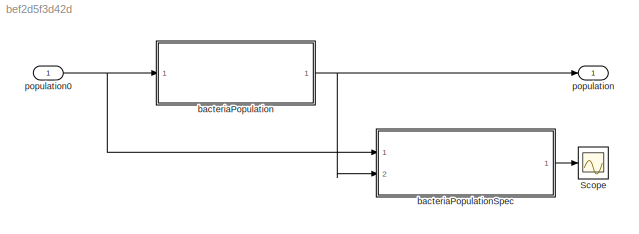
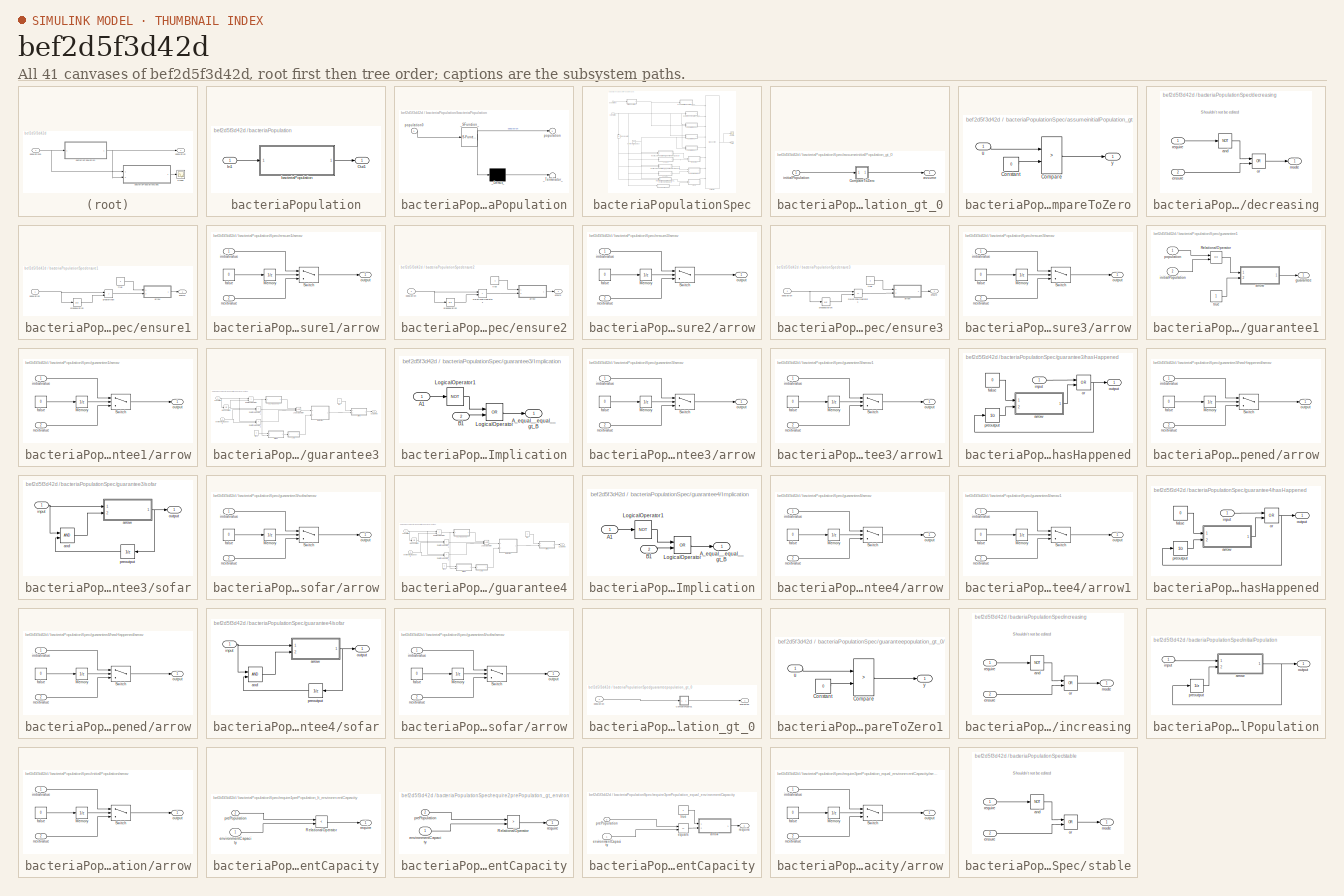
[diagram: thumbnail index - all 41 canvases of the model, root first then tree order]
MODEL slx_bef2d5f3d42d
KIND model
CONFIG AbsTol = auto
CONFIG EnableMultiTasking = off
CONFIG FixedStep = 1
CONFIG MaxStep = auto
CONFIG MinStep = auto
CONFIG RelTol = 1e-3
CONFIG SampleTimeConstraint = Unconstrained
CONFIG Solver = FixedStepDiscrete
CONFIG SolverName = FixedStepDiscrete
CONFIG StartTime = 0.0
CONFIG StopTime = 10.0
WORKSPACE source: MAT-file member
WORKSPACE MCOS: class17 (value not decoded)
BLOCK [Scope] Scope
  NumInputPorts = 1
  Ports = [1]
  ScopeSpecificationString = C++SS(StrPVP('Open','off'),StrPVP('TimeRange','auto'),StrPVP('TickLabels','OneTimeTick'),StrPVP('ShowLegends','off'),StrPVP('LimitDataPoints','off'),StrPVP('MaxDataPoints','5000'),StrPVP('SaveToWorkspace','off'),StrPVP('SaveName','ScopeData1'),StrPVP('YMin','0.9'),StrPVP('YMax','1.1'),StrPVP('BlockParamSampleInput','off'),StrPVP('BlockParamSampleTime','-1'),StrPVP('ZoomMode','on'),StrPVP('Grid','o...<+623ch>
BLOCK [SubSystem] bacteriaPopulation
  Ports = [1, 1]
  RequestExecContextInheritance = off
  TreatAsAtomicUnit = on
  Variant = off
BLOCK [Inport] bacteriaPopulation/In1
  IconDisplay = Port number
BLOCK [Outport] bacteriaPopulation/Out1
  IconDisplay = Port number
BLOCK [SubSystem] bacteriaPopulation/bacteriaPopulation
  ErrorFcn = Stateflow.Translate.translate
  PermitHierarchicalResolution = ExplicitOnly
  Ports = [1, 1]
  RequestExecContextInheritance = off
  SFBlockType = Chart
  TreatAsAtomicUnit = on
  Variant = off
BLOCK [Demux] bacteriaPopulation/bacteriaPopulation/_Demux_
  Outputs = 1
  Ports = [1, 1]
BLOCK [S-Function] bacteriaPopulation/bacteriaPopulation/_SFunction_
  EnableBusSupport = on
  FunctionName = sf_sfun
  PortCounts = [1 2]
  Ports = [1, 2]
  SFcnIsStateOwnerBlock = off
  SFunctionDeploymentMode = off
  Tag = Stateflow S-Function graphicalFun1 3
BLOCK [Terminator] bacteriaPopulation/bacteriaPopulation/_Terminator_
BLOCK [Outport] bacteriaPopulation/bacteriaPopulation/population
  IconDisplay = Port number
BLOCK [Inport] bacteriaPopulation/bacteriaPopulation/population0
  IconDisplay = Port number
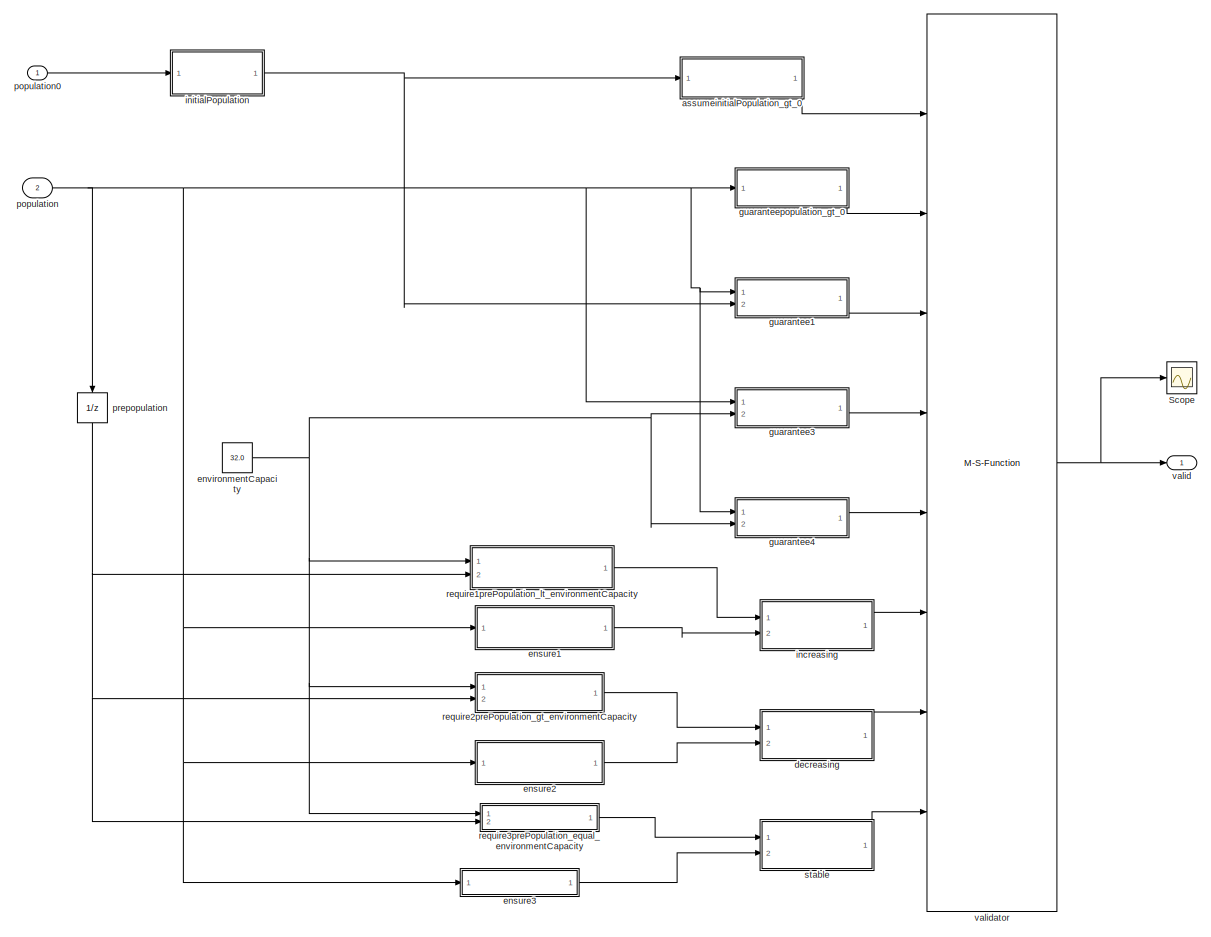
[diagram: bacteriaPopulationSpec - part 1/1, most of the canvas]
BLOCK [SubSystem] bacteriaPopulationSpec
  Ports = [2, 1]
  RequestExecContextInheritance = off
  TreatAsAtomicUnit = on
  Variant = off
BLOCK [Scope] bacteriaPopulationSpec/Scope
  NumInputPorts = 1
  Ports = [1]
  ScopeSpecificationString = C++SS(StrPVP('Open','off'),StrPVP('TimeRange','auto'),StrPVP('TickLabels','OneTimeTick'),StrPVP('ShowLegends','off'),StrPVP('LimitDataPoints','off'),StrPVP('MaxDataPoints','5000'),StrPVP('SaveToWorkspace','off'),StrPVP('SaveName','ScopeData1'),StrPVP('YMin','-10'),StrPVP('YMax','10'),StrPVP('BlockParamSampleInput','off'),StrPVP('BlockParamSampleTime','-1'),StrPVP('ZoomMode','on'),StrPVP('Grid','on...<+571ch>
BLOCK [SubSystem] bacteriaPopulationSpec/assumeinitialPopulation_gt_0
  Ports = [1, 1]
  RequestExecContextInheritance = off
  TreatAsAtomicUnit = on
  Variant = off
BLOCK [SubSystem] bacteriaPopulationSpec/assumeinitialPopulation_gt_0/CompareToZero
  AncestorBlock = simulink/Logic and Bit\nOperations/Compare\nTo Zero
  Ports = [1, 1]
  RequestExecContextInheritance = off
  TreatAsAtomicUnit = on
  Variant = off
BLOCK [RelationalOperator] bacteriaPopulationSpec/assumeinitialPopulation_gt_0/CompareToZero/Compare
  Operator = >
  OutDataTypeStr = boolean
  Ports = [2, 1]
BLOCK [Constant] bacteriaPopulationSpec/assumeinitialPopulation_gt_0/CompareToZero/Constant
  DisableCoverage = on
  OutDataTypeStr = Inherit: Inherit via back propagation
  PreserveConstantTs = on
  Value = 0
BLOCK [Inport] bacteriaPopulationSpec/assumeinitialPopulation_gt_0/CompareToZero/u
  IconDisplay = Port number
BLOCK [Outport] bacteriaPopulationSpec/assumeinitialPopulation_gt_0/CompareToZero/y
  IconDisplay = Port number
BLOCK [Outport] bacteriaPopulationSpec/assumeinitialPopulation_gt_0/assume
  IconDisplay = Port number
  OutDataTypeStr = boolean
BLOCK [Inport] bacteriaPopulationSpec/assumeinitialPopulation_gt_0/initialPopulation
  IconDisplay = Port number
BLOCK [SubSystem] bacteriaPopulationSpec/decreasing
  Ports = [2, 1]
  RequestExecContextInheritance = off
  TreatAsAtomicUnit = on
  Variant = off
BLOCK [Logic] bacteriaPopulationSpec/decreasing/and
  AllPortsSameDT = off
  IconShape = distinctive
  Operator = NOT
  OutDataTypeStr = boolean
  Ports = [1, 1]
BLOCK [Inport] bacteriaPopulationSpec/decreasing/ensure
  IconDisplay = Port number
  OutDataTypeStr = boolean
  Port = 2
BLOCK [Outport] bacteriaPopulationSpec/decreasing/mode
  IconDisplay = Port number
BLOCK [Logic] bacteriaPopulationSpec/decreasing/or
  AllPortsSameDT = off
  IconShape = distinctive
  Operator = OR
  OutDataTypeStr = boolean
  Ports = [2, 1]
BLOCK [Inport] bacteriaPopulationSpec/decreasing/require
  IconDisplay = Port number
  OutDataTypeStr = boolean
BLOCK [SubSystem] bacteriaPopulationSpec/ensure1
  Ports = [1, 1]
  RequestExecContextInheritance = off
  TreatAsAtomicUnit = on
  Variant = off
BLOCK [SubSystem] bacteriaPopulationSpec/ensure1/arrow
  Ports = [2, 1]
  RequestExecContextInheritance = off
  TreatAsAtomicUnit = on
  Variant = off
BLOCK [UnitDelay] bacteriaPopulationSpec/ensure1/arrow/Memory
  InitialCondition = 1
  InputProcessing = Elements as channels (sample based)
  SampleTime = -1
BLOCK [Switch] bacteriaPopulationSpec/ensure1/arrow/Switch
  Criteria = u2 > Threshold
  InputSameDT = off
  SaturateOnIntegerOverflow = off
BLOCK [Constant] bacteriaPopulationSpec/ensure1/arrow/false
  OutDataTypeStr = boolean
  Value = 0
BLOCK [Inport] bacteriaPopulationSpec/ensure1/arrow/initialvalue
  IconDisplay = Port number
BLOCK [Inport] bacteriaPopulationSpec/ensure1/arrow/nextvalue
  IconDisplay = Port number
  Port = 2
BLOCK [Outport] bacteriaPopulationSpec/ensure1/arrow/output
  IconDisplay = Port number
BLOCK [Outport] bacteriaPopulationSpec/ensure1/ensure
  IconDisplay = Port number
  OutDataTypeStr = boolean
BLOCK [RelationalOperator] bacteriaPopulationSpec/ensure1/greaterthan
  InputSameDT = off
  Operator = >
  OutDataTypeStr = boolean
  Ports = [2, 1]
BLOCK [Inport] bacteriaPopulationSpec/ensure1/population
  IconDisplay = Port number
BLOCK [UnitDelay] bacteriaPopulationSpec/ensure1/prepopulation
  InputProcessing = Elements as channels (sample based)
  SampleTime = -1
BLOCK [Constant] bacteriaPopulationSpec/ensure1/true
  OutDataTypeStr = boolean
BLOCK [SubSystem] bacteriaPopulationSpec/ensure2
  Ports = [1, 1]
  RequestExecContextInheritance = off
  TreatAsAtomicUnit = on
  Variant = off
BLOCK [RelationalOperator] bacteriaPopulationSpec/ensure2/RelationalOperator1
  InputSameDT = off
  Operator = <
  OutDataTypeStr = boolean
  Ports = [2, 1]
BLOCK [SubSystem] bacteriaPopulationSpec/ensure2/arrow
  Ports = [2, 1]
  RequestExecContextInheritance = off
  TreatAsAtomicUnit = on
  Variant = off
BLOCK [UnitDelay] bacteriaPopulationSpec/ensure2/arrow/Memory
  InitialCondition = 1
  InputProcessing = Elements as channels (sample based)
  SampleTime = -1
BLOCK [Switch] bacteriaPopulationSpec/ensure2/arrow/Switch
  Criteria = u2 > Threshold
  InputSameDT = off
  SaturateOnIntegerOverflow = off
BLOCK [Constant] bacteriaPopulationSpec/ensure2/arrow/false
  OutDataTypeStr = boolean
  Value = 0
BLOCK [Inport] bacteriaPopulationSpec/ensure2/arrow/initialvalue
  IconDisplay = Port number
BLOCK [Inport] bacteriaPopulationSpec/ensure2/arrow/nextvalue
  IconDisplay = Port number
  Port = 2
BLOCK [Outport] bacteriaPopulationSpec/ensure2/arrow/output
  IconDisplay = Port number
BLOCK [Outport] bacteriaPopulationSpec/ensure2/ensure
  IconDisplay = Port number
  OutDataTypeStr = boolean
BLOCK [Inport] bacteriaPopulationSpec/ensure2/population
  IconDisplay = Port number
BLOCK [UnitDelay] bacteriaPopulationSpec/ensure2/prepopulation
  InputProcessing = Elements as channels (sample based)
  SampleTime = -1
BLOCK [Constant] bacteriaPopulationSpec/ensure2/true
  OutDataTypeStr = boolean
BLOCK [SubSystem] bacteriaPopulationSpec/ensure3
  Ports = [1, 1]
  RequestExecContextInheritance = off
  TreatAsAtomicUnit = on
  Variant = off
BLOCK [RelationalOperator] bacteriaPopulationSpec/ensure3/RelationalOperator1
  InputSameDT = off
  Operator = ==
  OutDataTypeStr = boolean
  Ports = [2, 1]
BLOCK [SubSystem] bacteriaPopulationSpec/ensure3/arrow
  Ports = [2, 1]
  RequestExecContextInheritance = off
  TreatAsAtomicUnit = on
  Variant = off
BLOCK [UnitDelay] bacteriaPopulationSpec/ensure3/arrow/Memory
  InitialCondition = 1
  InputProcessing = Elements as channels (sample based)
  SampleTime = -1
BLOCK [Switch] bacteriaPopulationSpec/ensure3/arrow/Switch
  Criteria = u2 > Threshold
  InputSameDT = off
  SaturateOnIntegerOverflow = off
BLOCK [Constant] bacteriaPopulationSpec/ensure3/arrow/false
  OutDataTypeStr = boolean
  Value = 0
BLOCK [Inport] bacteriaPopulationSpec/ensure3/arrow/initialvalue
  IconDisplay = Port number
BLOCK [Inport] bacteriaPopulationSpec/ensure3/arrow/nextvalue
  IconDisplay = Port number
  Port = 2
BLOCK [Outport] bacteriaPopulationSpec/ensure3/arrow/output
  IconDisplay = Port number
BLOCK [Outport] bacteriaPopulationSpec/ensure3/ensure
  IconDisplay = Port number
  OutDataTypeStr = boolean
BLOCK [Inport] bacteriaPopulationSpec/ensure3/population
  IconDisplay = Port number
BLOCK [UnitDelay] bacteriaPopulationSpec/ensure3/prepopulation
  InputProcessing = Elements as channels (sample based)
  SampleTime = -1
BLOCK [Constant] bacteriaPopulationSpec/ensure3/true
  OutDataTypeStr = boolean
BLOCK [Constant] bacteriaPopulationSpec/environmentCapacity
  OutDataTypeStr = double
  Value = 32.0
BLOCK [SubSystem] bacteriaPopulationSpec/guarantee1
  Ports = [2, 1]
  RequestExecContextInheritance = off
  TreatAsAtomicUnit = on
  Variant = off
BLOCK [RelationalOperator] bacteriaPopulationSpec/guarantee1/RelationalOperator
  InputSameDT = off
  Operator = ==
  OutDataTypeStr = boolean
  Ports = [2, 1]
BLOCK [SubSystem] bacteriaPopulationSpec/guarantee1/arrow
  Ports = [2, 1]
  RequestExecContextInheritance = off
  TreatAsAtomicUnit = on
  Variant = off
BLOCK [UnitDelay] bacteriaPopulationSpec/guarantee1/arrow/Memory
  InitialCondition = 1
  InputProcessing = Elements as channels (sample based)
  SampleTime = -1
BLOCK [Switch] bacteriaPopulationSpec/guarantee1/arrow/Switch
  Criteria = u2 > Threshold
  InputSameDT = off
  SaturateOnIntegerOverflow = off
BLOCK [Constant] bacteriaPopulationSpec/guarantee1/arrow/false
  OutDataTypeStr = boolean
  Value = 0
BLOCK [Inport] bacteriaPopulationSpec/guarantee1/arrow/initialvalue
  IconDisplay = Port number
BLOCK [Inport] bacteriaPopulationSpec/guarantee1/arrow/nextvalue
  IconDisplay = Port number
  Port = 2
BLOCK [Outport] bacteriaPopulationSpec/guarantee1/arrow/output
  IconDisplay = Port number
BLOCK [Outport] bacteriaPopulationSpec/guarantee1/guarantee
  IconDisplay = Port number
  OutDataTypeStr = boolean
BLOCK [Inport] bacteriaPopulationSpec/guarantee1/initialPopulation
  IconDisplay = Port number
  Port = 2
BLOCK [Inport] bacteriaPopulationSpec/guarantee1/population
  IconDisplay = Port number
BLOCK [Constant] bacteriaPopulationSpec/guarantee1/true
  OutDataTypeStr = boolean
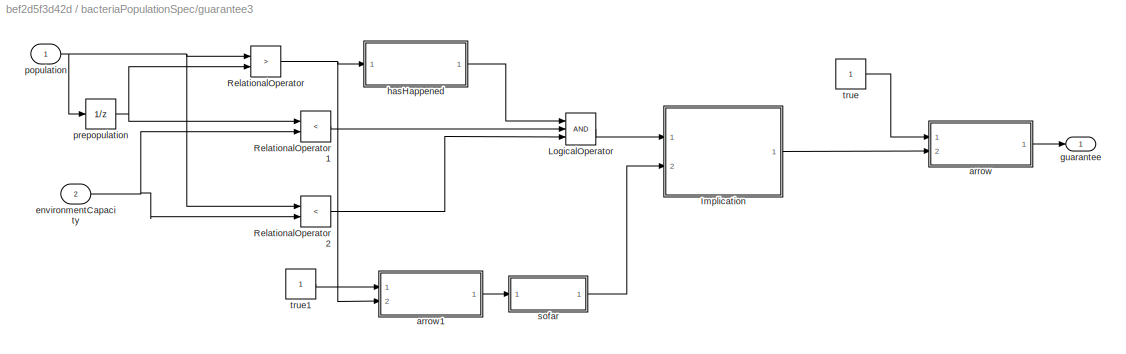
BLOCK [SubSystem] bacteriaPopulationSpec/guarantee3
  Ports = [2, 1]
  RequestExecContextInheritance = off
  TreatAsAtomicUnit = on
  Variant = off
BLOCK [SubSystem] bacteriaPopulationSpec/guarantee3/Implication
  Ports = [2, 1]
  RequestExecContextInheritance = off
  TreatAsAtomicUnit = on
  Variant = off
BLOCK [Inport] bacteriaPopulationSpec/guarantee3/Implication/A1
  IconDisplay = Port number
BLOCK [Outport] bacteriaPopulationSpec/guarantee3/Implication/A_equal__equal__gt_B
  IconDisplay = Port number
BLOCK [Inport] bacteriaPopulationSpec/guarantee3/Implication/B1
  IconDisplay = Port number
  Port = 2
BLOCK [Logic] bacteriaPopulationSpec/guarantee3/Implication/LogicalOperator
  AllPortsSameDT = off
  Operator = OR
  OutDataTypeStr = boolean
  Ports = [2, 1]
BLOCK [Logic] bacteriaPopulationSpec/guarantee3/Implication/LogicalOperator1
  AllPortsSameDT = off
  Operator = NOT
  OutDataTypeStr = boolean
  Ports = [1, 1]
BLOCK [Logic] bacteriaPopulationSpec/guarantee3/LogicalOperator
  AllPortsSameDT = off
  Inputs = 3
  OutDataTypeStr = boolean
  Ports = [3, 1]
BLOCK [RelationalOperator] bacteriaPopulationSpec/guarantee3/RelationalOperator
  InputSameDT = off
  Operator = >
  OutDataTypeStr = boolean
  Ports = [2, 1]
BLOCK [RelationalOperator] bacteriaPopulationSpec/guarantee3/RelationalOperator1
  InputSameDT = off
  Operator = <
  OutDataTypeStr = boolean
  Ports = [2, 1]
BLOCK [RelationalOperator] bacteriaPopulationSpec/guarantee3/RelationalOperator2
  InputSameDT = off
  Operator = <
  OutDataTypeStr = boolean
  Ports = [2, 1]
BLOCK [SubSystem] bacteriaPopulationSpec/guarantee3/arrow
  Ports = [2, 1]
  RequestExecContextInheritance = off
  TreatAsAtomicUnit = on
  Variant = off
BLOCK [UnitDelay] bacteriaPopulationSpec/guarantee3/arrow/Memory
  InitialCondition = 1
  InputProcessing = Elements as channels (sample based)
  SampleTime = -1
BLOCK [Switch] bacteriaPopulationSpec/guarantee3/arrow/Switch
  Criteria = u2 > Threshold
  InputSameDT = off
  SaturateOnIntegerOverflow = off
BLOCK [Constant] bacteriaPopulationSpec/guarantee3/arrow/false
  OutDataTypeStr = boolean
  Value = 0
BLOCK [Inport] bacteriaPopulationSpec/guarantee3/arrow/initialvalue
  IconDisplay = Port number
BLOCK [Inport] bacteriaPopulationSpec/guarantee3/arrow/nextvalue
  IconDisplay = Port number
  Port = 2
BLOCK [Outport] bacteriaPopulationSpec/guarantee3/arrow/output
  IconDisplay = Port number
BLOCK [SubSystem] bacteriaPopulationSpec/guarantee3/arrow1
  Ports = [2, 1]
  RequestExecContextInheritance = off
  TreatAsAtomicUnit = on
  Variant = off
BLOCK [UnitDelay] bacteriaPopulationSpec/guarantee3/arrow1/Memory
  InitialCondition = 1
  InputProcessing = Elements as channels (sample based)
  SampleTime = -1
BLOCK [Switch] bacteriaPopulationSpec/guarantee3/arrow1/Switch
  Criteria = u2 > Threshold
  InputSameDT = off
  SaturateOnIntegerOverflow = off
BLOCK [Constant] bacteriaPopulationSpec/guarantee3/arrow1/false
  OutDataTypeStr = boolean
  Value = 0
BLOCK [Inport] bacteriaPopulationSpec/guarantee3/arrow1/initialvalue
  IconDisplay = Port number
BLOCK [Inport] bacteriaPopulationSpec/guarantee3/arrow1/nextvalue
  IconDisplay = Port number
  Port = 2
BLOCK [Outport] bacteriaPopulationSpec/guarantee3/arrow1/output
  IconDisplay = Port number
BLOCK [Inport] bacteriaPopulationSpec/guarantee3/environmentCapacity
  IconDisplay = Port number
  Port = 2
BLOCK [Outport] bacteriaPopulationSpec/guarantee3/guarantee
  IconDisplay = Port number
  OutDataTypeStr = boolean
BLOCK [SubSystem] bacteriaPopulationSpec/guarantee3/hasHappened
  Ports = [1, 1]
  RequestExecContextInheritance = off
  TreatAsAtomicUnit = on
  Variant = off
BLOCK [SubSystem] bacteriaPopulationSpec/guarantee3/hasHappened/arrow
  Ports = [2, 1]
  RequestExecContextInheritance = off
  TreatAsAtomicUnit = on
  Variant = off
BLOCK [UnitDelay] bacteriaPopulationSpec/guarantee3/hasHappened/arrow/Memory
  InitialCondition = 1
  InputProcessing = Elements as channels (sample based)
  SampleTime = -1
BLOCK [Switch] bacteriaPopulationSpec/guarantee3/hasHappened/arrow/Switch
  Criteria = u2 > Threshold
  InputSameDT = off
  SaturateOnIntegerOverflow = off
BLOCK [Constant] bacteriaPopulationSpec/guarantee3/hasHappened/arrow/false
  OutDataTypeStr = boolean
  Value = 0
BLOCK [Inport] bacteriaPopulationSpec/guarantee3/hasHappened/arrow/initialvalue
  IconDisplay = Port number
BLOCK [Inport] bacteriaPopulationSpec/guarantee3/hasHappened/arrow/nextvalue
  IconDisplay = Port number
  Port = 2
BLOCK [Outport] bacteriaPopulationSpec/guarantee3/hasHappened/arrow/output
  IconDisplay = Port number
BLOCK [Constant] bacteriaPopulationSpec/guarantee3/hasHappened/false
  OutDataTypeStr = boolean
  Value = 0
BLOCK [Inport] bacteriaPopulationSpec/guarantee3/hasHappened/input
  IconDisplay = Port number
  OutDataTypeStr = boolean
BLOCK [Logic] bacteriaPopulationSpec/guarantee3/hasHappened/or
  AllPortsSameDT = off
  IconShape = distinctive
  Operator = OR
  OutDataTypeStr = boolean
  Ports = [2, 1]
BLOCK [Outport] bacteriaPopulationSpec/guarantee3/hasHappened/output
  IconDisplay = Port number
  OutDataTypeStr = boolean
BLOCK [UnitDelay] bacteriaPopulationSpec/guarantee3/hasHappened/preoutput
  InitialCondition = 1
  InputProcessing = Elements as channels (sample based)
  SampleTime = -1
BLOCK [Inport] bacteriaPopulationSpec/guarantee3/population
  IconDisplay = Port number
BLOCK [UnitDelay] bacteriaPopulationSpec/guarantee3/prepopulation
  InputProcessing = Elements as channels (sample based)
  SampleTime = -1
BLOCK [SubSystem] bacteriaPopulationSpec/guarantee3/sofar
  Ports = [1, 1]
  RequestExecContextInheritance = off
  TreatAsAtomicUnit = on
  Variant = off
BLOCK [Logic] bacteriaPopulationSpec/guarantee3/sofar/and
  AllPortsSameDT = off
  IconShape = distinctive
  OutDataTypeStr = boolean
  Ports = [2, 1]
BLOCK [SubSystem] bacteriaPopulationSpec/guarantee3/sofar/arrow
  Ports = [2, 1]
  RequestExecContextInheritance = off
  TreatAsAtomicUnit = on
  Variant = off
BLOCK [UnitDelay] bacteriaPopulationSpec/guarantee3/sofar/arrow/Memory
  InitialCondition = 1
  InputProcessing = Elements as channels (sample based)
  SampleTime = -1
BLOCK [Switch] bacteriaPopulationSpec/guarantee3/sofar/arrow/Switch
  Criteria = u2 > Threshold
  InputSameDT = off
  SaturateOnIntegerOverflow = off
BLOCK [Constant] bacteriaPopulationSpec/guarantee3/sofar/arrow/false
  OutDataTypeStr = boolean
  Value = 0
BLOCK [Inport] bacteriaPopulationSpec/guarantee3/sofar/arrow/initialvalue
  IconDisplay = Port number
BLOCK [Inport] bacteriaPopulationSpec/guarantee3/sofar/arrow/nextvalue
  IconDisplay = Port number
  Port = 2
BLOCK [Outport] bacteriaPopulationSpec/guarantee3/sofar/arrow/output
  IconDisplay = Port number
BLOCK [Inport] bacteriaPopulationSpec/guarantee3/sofar/input
  IconDisplay = Port number
  OutDataTypeStr = boolean
BLOCK [Outport] bacteriaPopulationSpec/guarantee3/sofar/output
  IconDisplay = Port number
  OutDataTypeStr = boolean
BLOCK [UnitDelay] bacteriaPopulationSpec/guarantee3/sofar/preoutput
  InitialCondition = 1
  InputProcessing = Elements as channels (sample based)
  SampleTime = -1
BLOCK [Constant] bacteriaPopulationSpec/guarantee3/true
  OutDataTypeStr = boolean
BLOCK [Constant] bacteriaPopulationSpec/guarantee3/true1
  OutDataTypeStr = boolean
BLOCK [SubSystem] bacteriaPopulationSpec/guarantee4
  Ports = [2, 1]
  RequestExecContextInheritance = off
  TreatAsAtomicUnit = on
  Variant = off
BLOCK [SubSystem] bacteriaPopulationSpec/guarantee4/Implication
  Ports = [2, 1]
  RequestExecContextInheritance = off
  TreatAsAtomicUnit = on
  Variant = off
BLOCK [Inport] bacteriaPopulationSpec/guarantee4/Implication/A1
  IconDisplay = Port number
BLOCK [Outport] bacteriaPopulationSpec/guarantee4/Implication/A_equal__equal__gt_B
  IconDisplay = Port number
BLOCK [Inport] bacteriaPopulationSpec/guarantee4/Implication/B1
  IconDisplay = Port number
  Port = 2
BLOCK [Logic] bacteriaPopulationSpec/guarantee4/Implication/LogicalOperator
  AllPortsSameDT = off
  Operator = OR
  OutDataTypeStr = boolean
  Ports = [2, 1]
BLOCK [Logic] bacteriaPopulationSpec/guarantee4/Implication/LogicalOperator1
  AllPortsSameDT = off
  Operator = NOT
  OutDataTypeStr = boolean
  Ports = [1, 1]
BLOCK [Logic] bacteriaPopulationSpec/guarantee4/LogicalOperator
  AllPortsSameDT = off
  Inputs = 3
  OutDataTypeStr = boolean
  Ports = [3, 1]
BLOCK [RelationalOperator] bacteriaPopulationSpec/guarantee4/RelationalOperator
  InputSameDT = off
  Operator = <
  OutDataTypeStr = boolean
  Ports = [2, 1]
BLOCK [RelationalOperator] bacteriaPopulationSpec/guarantee4/RelationalOperator1
  InputSameDT = off
  Operator = >
  OutDataTypeStr = boolean
  Ports = [2, 1]
BLOCK [RelationalOperator] bacteriaPopulationSpec/guarantee4/RelationalOperator2
  InputSameDT = off
  Operator = >
  OutDataTypeStr = boolean
  Ports = [2, 1]
BLOCK [SubSystem] bacteriaPopulationSpec/guarantee4/arrow
  Ports = [2, 1]
  RequestExecContextInheritance = off
  TreatAsAtomicUnit = on
  Variant = off
BLOCK [UnitDelay] bacteriaPopulationSpec/guarantee4/arrow/Memory
  InitialCondition = 1
  InputProcessing = Elements as channels (sample based)
  SampleTime = -1
BLOCK [Switch] bacteriaPopulationSpec/guarantee4/arrow/Switch
  Criteria = u2 > Threshold
  InputSameDT = off
  SaturateOnIntegerOverflow = off
BLOCK [Constant] bacteriaPopulationSpec/guarantee4/arrow/false
  OutDataTypeStr = boolean
  Value = 0
BLOCK [Inport] bacteriaPopulationSpec/guarantee4/arrow/initialvalue
  IconDisplay = Port number
BLOCK [Inport] bacteriaPopulationSpec/guarantee4/arrow/nextvalue
  IconDisplay = Port number
  Port = 2
BLOCK [Outport] bacteriaPopulationSpec/guarantee4/arrow/output
  IconDisplay = Port number
BLOCK [SubSystem] bacteriaPopulationSpec/guarantee4/arrow1
  Ports = [2, 1]
  RequestExecContextInheritance = off
  TreatAsAtomicUnit = on
  Variant = off
BLOCK [UnitDelay] bacteriaPopulationSpec/guarantee4/arrow1/Memory
  InitialCondition = 1
  InputProcessing = Elements as channels (sample based)
  SampleTime = -1
BLOCK [Switch] bacteriaPopulationSpec/guarantee4/arrow1/Switch
  Criteria = u2 > Threshold
  InputSameDT = off
  SaturateOnIntegerOverflow = off
BLOCK [Constant] bacteriaPopulationSpec/guarantee4/arrow1/false
  OutDataTypeStr = boolean
  Value = 0
BLOCK [Inport] bacteriaPopulationSpec/guarantee4/arrow1/initialvalue
  IconDisplay = Port number
BLOCK [Inport] bacteriaPopulationSpec/guarantee4/arrow1/nextvalue
  IconDisplay = Port number
  Port = 2
BLOCK [Outport] bacteriaPopulationSpec/guarantee4/arrow1/output
  IconDisplay = Port number
BLOCK [Inport] bacteriaPopulationSpec/guarantee4/environmentCapacity
  IconDisplay = Port number
  Port = 2
BLOCK [Outport] bacteriaPopulationSpec/guarantee4/guarantee
  IconDisplay = Port number
  OutDataTypeStr = boolean
BLOCK [SubSystem] bacteriaPopulationSpec/guarantee4/hasHappened
  Ports = [1, 1]
  RequestExecContextInheritance = off
  TreatAsAtomicUnit = on
  Variant = off
BLOCK [SubSystem] bacteriaPopulationSpec/guarantee4/hasHappened/arrow
  Ports = [2, 1]
  RequestExecContextInheritance = off
  TreatAsAtomicUnit = on
  Variant = off
BLOCK [UnitDelay] bacteriaPopulationSpec/guarantee4/hasHappened/arrow/Memory
  InitialCondition = 1
  InputProcessing = Elements as channels (sample based)
  SampleTime = -1
BLOCK [Switch] bacteriaPopulationSpec/guarantee4/hasHappened/arrow/Switch
  Criteria = u2 > Threshold
  InputSameDT = off
  SaturateOnIntegerOverflow = off
BLOCK [Constant] bacteriaPopulationSpec/guarantee4/hasHappened/arrow/false
  OutDataTypeStr = boolean
  Value = 0
BLOCK [Inport] bacteriaPopulationSpec/guarantee4/hasHappened/arrow/initialvalue
  IconDisplay = Port number
BLOCK [Inport] bacteriaPopulationSpec/guarantee4/hasHappened/arrow/nextvalue
  IconDisplay = Port number
  Port = 2
BLOCK [Outport] bacteriaPopulationSpec/guarantee4/hasHappened/arrow/output
  IconDisplay = Port number
BLOCK [Constant] bacteriaPopulationSpec/guarantee4/hasHappened/false
  OutDataTypeStr = boolean
  Value = 0
BLOCK [Inport] bacteriaPopulationSpec/guarantee4/hasHappened/input
  IconDisplay = Port number
  OutDataTypeStr = boolean
BLOCK [Logic] bacteriaPopulationSpec/guarantee4/hasHappened/or
  AllPortsSameDT = off
  IconShape = distinctive
  Operator = OR
  OutDataTypeStr = boolean
  Ports = [2, 1]
BLOCK [Outport] bacteriaPopulationSpec/guarantee4/hasHappened/output
  IconDisplay = Port number
  OutDataTypeStr = boolean
BLOCK [UnitDelay] bacteriaPopulationSpec/guarantee4/hasHappened/preoutput
  InitialCondition = 1
  InputProcessing = Elements as channels (sample based)
  SampleTime = -1
BLOCK [Inport] bacteriaPopulationSpec/guarantee4/population
  IconDisplay = Port number
BLOCK [UnitDelay] bacteriaPopulationSpec/guarantee4/prepopulation
  InputProcessing = Elements as channels (sample based)
  SampleTime = -1
BLOCK [SubSystem] bacteriaPopulationSpec/guarantee4/sofar
  Ports = [1, 1]
  RequestExecContextInheritance = off
  TreatAsAtomicUnit = on
  Variant = off
BLOCK [Logic] bacteriaPopulationSpec/guarantee4/sofar/and
  AllPortsSameDT = off
  IconShape = distinctive
  OutDataTypeStr = boolean
  Ports = [2, 1]
BLOCK [SubSystem] bacteriaPopulationSpec/guarantee4/sofar/arrow
  Ports = [2, 1]
  RequestExecContextInheritance = off
  TreatAsAtomicUnit = on
  Variant = off
BLOCK [UnitDelay] bacteriaPopulationSpec/guarantee4/sofar/arrow/Memory
  InitialCondition = 1
  InputProcessing = Elements as channels (sample based)
  SampleTime = -1
BLOCK [Switch] bacteriaPopulationSpec/guarantee4/sofar/arrow/Switch
  Criteria = u2 > Threshold
  InputSameDT = off
  SaturateOnIntegerOverflow = off
BLOCK [Constant] bacteriaPopulationSpec/guarantee4/sofar/arrow/false
  OutDataTypeStr = boolean
  Value = 0
BLOCK [Inport] bacteriaPopulationSpec/guarantee4/sofar/arrow/initialvalue
  IconDisplay = Port number
BLOCK [Inport] bacteriaPopulationSpec/guarantee4/sofar/arrow/nextvalue
  IconDisplay = Port number
  Port = 2
BLOCK [Outport] bacteriaPopulationSpec/guarantee4/sofar/arrow/output
  IconDisplay = Port number
BLOCK [Inport] bacteriaPopulationSpec/guarantee4/sofar/input
  IconDisplay = Port number
  OutDataTypeStr = boolean
BLOCK [Outport] bacteriaPopulationSpec/guarantee4/sofar/output
  IconDisplay = Port number
  OutDataTypeStr = boolean
BLOCK [UnitDelay] bacteriaPopulationSpec/guarantee4/sofar/preoutput
  InitialCondition = 1
  InputProcessing = Elements as channels (sample based)
  SampleTime = -1
BLOCK [Constant] bacteriaPopulationSpec/guarantee4/true
  OutDataTypeStr = boolean
BLOCK [Constant] bacteriaPopulationSpec/guarantee4/true1
  OutDataTypeStr = boolean
BLOCK [SubSystem] bacteriaPopulationSpec/guaranteepopulation_gt_0
  Ports = [1, 1]
  RequestExecContextInheritance = off
  TreatAsAtomicUnit = on
  Variant = off
BLOCK [SubSystem] bacteriaPopulationSpec/guaranteepopulation_gt_0/CompareToZero1
  AncestorBlock = simulink/Logic and Bit\nOperations/Compare\nTo Zero
  Ports = [1, 1]
  RequestExecContextInheritance = off
  TreatAsAtomicUnit = on
  Variant = off
BLOCK [RelationalOperator] bacteriaPopulationSpec/guaranteepopulation_gt_0/CompareToZero1/Compare
  Operator = >
  OutDataTypeStr = boolean
  Ports = [2, 1]
BLOCK [Constant] bacteriaPopulationSpec/guaranteepopulation_gt_0/CompareToZero1/Constant
  DisableCoverage = on
  OutDataTypeStr = Inherit: Inherit via back propagation
  PreserveConstantTs = on
  Value = 0
BLOCK [Inport] bacteriaPopulationSpec/guaranteepopulation_gt_0/CompareToZero1/u
  IconDisplay = Port number
BLOCK [Outport] bacteriaPopulationSpec/guaranteepopulation_gt_0/CompareToZero1/y
  IconDisplay = Port number
BLOCK [Outport] bacteriaPopulationSpec/guaranteepopulation_gt_0/guarantee
  IconDisplay = Port number
  OutDataTypeStr = boolean
BLOCK [Inport] bacteriaPopulationSpec/guaranteepopulation_gt_0/population
  IconDisplay = Port number
BLOCK [SubSystem] bacteriaPopulationSpec/increasing
  Ports = [2, 1]
  RequestExecContextInheritance = off
  TreatAsAtomicUnit = on
  Variant = off
BLOCK [Logic] bacteriaPopulationSpec/increasing/and
  AllPortsSameDT = off
  IconShape = distinctive
  Operator = NOT
  OutDataTypeStr = boolean
  Ports = [1, 1]
BLOCK [Inport] bacteriaPopulationSpec/increasing/ensure
  IconDisplay = Port number
  OutDataTypeStr = boolean
  Port = 2
BLOCK [Outport] bacteriaPopulationSpec/increasing/mode
  IconDisplay = Port number
BLOCK [Logic] bacteriaPopulationSpec/increasing/or
  AllPortsSameDT = off
  IconShape = distinctive
  Operator = OR
  OutDataTypeStr = boolean
  Ports = [2, 1]
BLOCK [Inport] bacteriaPopulationSpec/increasing/require
  IconDisplay = Port number
  OutDataTypeStr = boolean
BLOCK [SubSystem] bacteriaPopulationSpec/initialPopulation
  Ports = [1, 1]
  RequestExecContextInheritance = off
  TreatAsAtomicUnit = on
  Variant = off
BLOCK [SubSystem] bacteriaPopulationSpec/initialPopulation/arrow
  Ports = [2, 1]
  RequestExecContextInheritance = off
  TreatAsAtomicUnit = on
  Variant = off
BLOCK [UnitDelay] bacteriaPopulationSpec/initialPopulation/arrow/Memory
  InitialCondition = 1
  InputProcessing = Elements as channels (sample based)
  SampleTime = -1
BLOCK [Switch] bacteriaPopulationSpec/initialPopulation/arrow/Switch
  Criteria = u2 > Threshold
  InputSameDT = off
  SaturateOnIntegerOverflow = off
BLOCK [Constant] bacteriaPopulationSpec/initialPopulation/arrow/false
  OutDataTypeStr = boolean
  Value = 0
BLOCK [Inport] bacteriaPopulationSpec/initialPopulation/arrow/initialvalue
  IconDisplay = Port number
BLOCK [Inport] bacteriaPopulationSpec/initialPopulation/arrow/nextvalue
  IconDisplay = Port number
  Port = 2
BLOCK [Outport] bacteriaPopulationSpec/initialPopulation/arrow/output
  IconDisplay = Port number
BLOCK [Inport] bacteriaPopulationSpec/initialPopulation/input
  IconDisplay = Port number
BLOCK [Outport] bacteriaPopulationSpec/initialPopulation/output
  IconDisplay = Port number
BLOCK [UnitDelay] bacteriaPopulationSpec/initialPopulation/preoutput
  InitialCondition = 1
  InputProcessing = Elements as channels (sample based)
  SampleTime = -1
BLOCK [Inport] bacteriaPopulationSpec/population
  IconDisplay = Port number
  Port = 2
BLOCK [Inport] bacteriaPopulationSpec/population0
  IconDisplay = Port number
BLOCK [UnitDelay] bacteriaPopulationSpec/prepopulation
  InputProcessing = Elements as channels (sample based)
  SampleTime = -1
BLOCK [SubSystem] bacteriaPopulationSpec/require1prePopulation_lt_environmentCapacity
  Ports = [2, 1]
  RequestExecContextInheritance = off
  TreatAsAtomicUnit = on
  Variant = off
BLOCK [RelationalOperator] bacteriaPopulationSpec/require1prePopulation_lt_environmentCapacity/RelationalOperator
  InputSameDT = off
  Operator = <
  OutDataTypeStr = boolean
  Ports = [2, 1]
BLOCK [Inport] bacteriaPopulationSpec/require1prePopulation_lt_environmentCapacity/environmentCapacity
  IconDisplay = Port number
BLOCK [Inport] bacteriaPopulationSpec/require1prePopulation_lt_environmentCapacity/prePopulation
  IconDisplay = Port number
  Port = 2
BLOCK [Outport] bacteriaPopulationSpec/require1prePopulation_lt_environmentCapacity/require
  IconDisplay = Port number
  OutDataTypeStr = boolean
BLOCK [SubSystem] bacteriaPopulationSpec/require2prePopulation_gt_environmentCapacity
  Ports = [2, 1]
  RequestExecContextInheritance = off
  TreatAsAtomicUnit = on
  Variant = off
BLOCK [RelationalOperator] bacteriaPopulationSpec/require2prePopulation_gt_environmentCapacity/RelationalOperator
  InputSameDT = off
  Operator = >
  OutDataTypeStr = boolean
  Ports = [2, 1]
BLOCK [Inport] bacteriaPopulationSpec/require2prePopulation_gt_environmentCapacity/environmentCapacity
  IconDisplay = Port number
BLOCK [Inport] bacteriaPopulationSpec/require2prePopulation_gt_environmentCapacity/prePopulation
  IconDisplay = Port number
  Port = 2
BLOCK [Outport] bacteriaPopulationSpec/require2prePopulation_gt_environmentCapacity/require
  IconDisplay = Port number
  OutDataTypeStr = boolean
BLOCK [SubSystem] bacteriaPopulationSpec/require3prePopulation_equal_environmentCapacity
  Ports = [2, 1]
  RequestExecContextInheritance = off
  TreatAsAtomicUnit = on
  Variant = off
BLOCK [SubSystem] bacteriaPopulationSpec/require3prePopulation_equal_environmentCapacity/arrow
  Ports = [2, 1]
  RequestExecContextInheritance = off
  TreatAsAtomicUnit = on
  Variant = off
BLOCK [UnitDelay] bacteriaPopulationSpec/require3prePopulation_equal_environmentCapacity/arrow/Memory
  InitialCondition = 1
  InputProcessing = Elements as channels (sample based)
  SampleTime = -1
BLOCK [Switch] bacteriaPopulationSpec/require3prePopulation_equal_environmentCapacity/arrow/Switch
  Criteria = u2 > Threshold
  InputSameDT = off
  SaturateOnIntegerOverflow = off
BLOCK [Constant] bacteriaPopulationSpec/require3prePopulation_equal_environmentCapacity/arrow/false
  OutDataTypeStr = boolean
  Value = 0
BLOCK [Inport] bacteriaPopulationSpec/require3prePopulation_equal_environmentCapacity/arrow/initialvalue
  IconDisplay = Port number
BLOCK [Inport] bacteriaPopulationSpec/require3prePopulation_equal_environmentCapacity/arrow/nextvalue
  IconDisplay = Port number
  Port = 2
BLOCK [Outport] bacteriaPopulationSpec/require3prePopulation_equal_environmentCapacity/arrow/output
  IconDisplay = Port number
BLOCK [Inport] bacteriaPopulationSpec/require3prePopulation_equal_environmentCapacity/environmentCapacity
  IconDisplay = Port number
BLOCK [RelationalOperator] bacteriaPopulationSpec/require3prePopulation_equal_environmentCapacity/equals
  InputSameDT = off
  Operator = ==
  OutDataTypeStr = boolean
  Ports = [2, 1]
BLOCK [Inport] bacteriaPopulationSpec/require3prePopulation_equal_environmentCapacity/prePopulation
  IconDisplay = Port number
  Port = 2
BLOCK [Outport] bacteriaPopulationSpec/require3prePopulation_equal_environmentCapacity/require
  IconDisplay = Port number
  OutDataTypeStr = boolean
BLOCK [Constant] bacteriaPopulationSpec/require3prePopulation_equal_environmentCapacity/true
  OutDataTypeStr = boolean
BLOCK [SubSystem] bacteriaPopulationSpec/stable
  Ports = [2, 1]
  RequestExecContextInheritance = off
  TreatAsAtomicUnit = on
  Variant = off
BLOCK [Logic] bacteriaPopulationSpec/stable/and
  AllPortsSameDT = off
  IconShape = distinctive
  Operator = NOT
  OutDataTypeStr = boolean
  Ports = [1, 1]
BLOCK [Inport] bacteriaPopulationSpec/stable/ensure
  IconDisplay = Port number
  OutDataTypeStr = boolean
  Port = 2
BLOCK [Outport] bacteriaPopulationSpec/stable/mode
  IconDisplay = Port number
BLOCK [Logic] bacteriaPopulationSpec/stable/or
  AllPortsSameDT = off
  IconShape = distinctive
  Operator = OR
  OutDataTypeStr = boolean
  Ports = [2, 1]
BLOCK [Inport] bacteriaPopulationSpec/stable/require
  IconDisplay = Port number
  OutDataTypeStr = boolean
BLOCK [Outport] bacteriaPopulationSpec/valid
  IconDisplay = Port number
BLOCK [M-S-Function] bacteriaPopulationSpec/validator
  FunctionName = contract
  InitFcn = contractBeforeSimulation();
  LoadFcn = saveValidatorParameters(gcb);
  Ports = [8, 1]
  StopFcn = contractAfterSimulation();
BLOCK [Outport] population
  IconDisplay = Port number
BLOCK [Inport] population0
  IconDisplay = Port number
ANNOTATION bacteriaPopulationSpec/decreasing: Shouldn't not be edited
ANNOTATION bacteriaPopulationSpec/increasing: Shouldn't not be edited
ANNOTATION bacteriaPopulationSpec/stable: Shouldn't not be edited
LINE bacteriaPopulation/In1:1 -> bacteriaPopulation/bacteriaPopulation:1
LINE bacteriaPopulation/bacteriaPopulation:1 -> bacteriaPopulation/Out1:1
NET bacteriaPopulation:1 -> bacteriaPopulationSpec:2, population:1
LINE bacteriaPopulationSpec:1 -> Scope:1
NET population0:1 -> bacteriaPopulation:1, bacteriaPopulationSpec:1
note: NET lines group one-source signal fan-out (src -> all destinations, sorted); 1:1 wires keep LINE
CHART bacteriaPopulation/bacteriaPopulation states=3 transitions=11
  STATE_LABEL '[x1, y1] = gupdate(x,y)'
  STATE_LABEL '[ y < 32.0 ]{x1 = y; y1 = y*2;}'
  STATE_LABEL '[ y > 32.0 ]{x1 = y; y1 = y/2;}'
  STATE_LABEL "{disp('efefe')}"
  STATE_LABEL '{x1 = x; y1 = y;}'
  STATE_LABEL 'start\nentry:\nprePopulation = population0;\npopulation = population0;\n'
  STATE_LABEL 'state\nentry:\n[prePopulation, population] = gupdate(prePopulation, population);\n'
